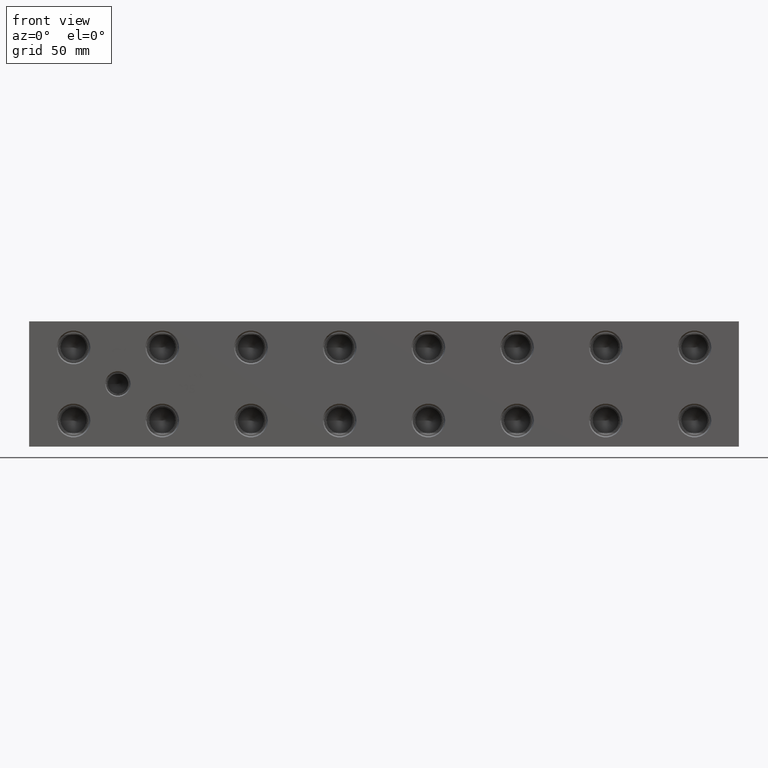
[diagram: clean part render]
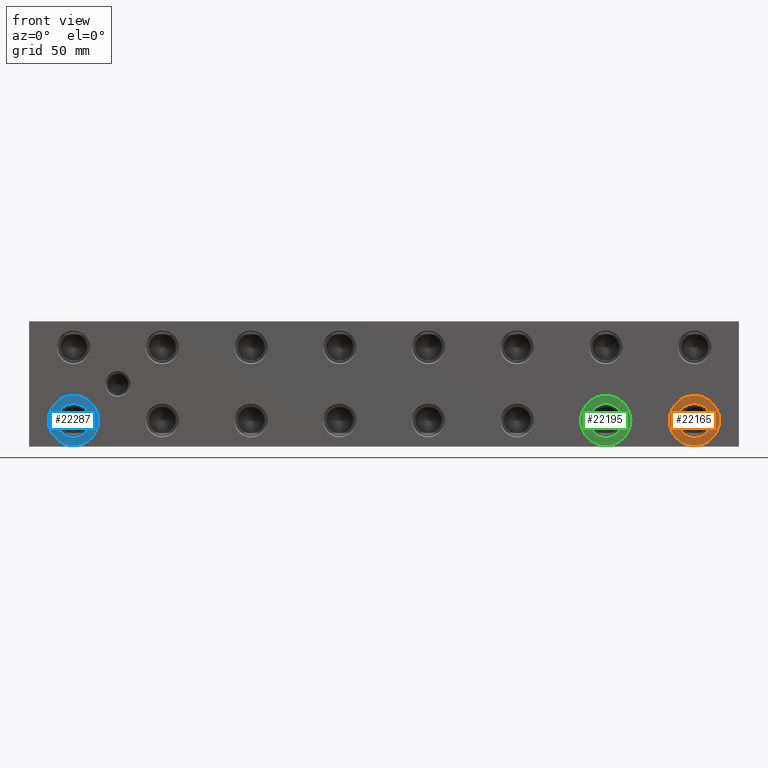
[diagram: same view with three faces highlighted in distinct colors, each labeled with its STEP entity id]
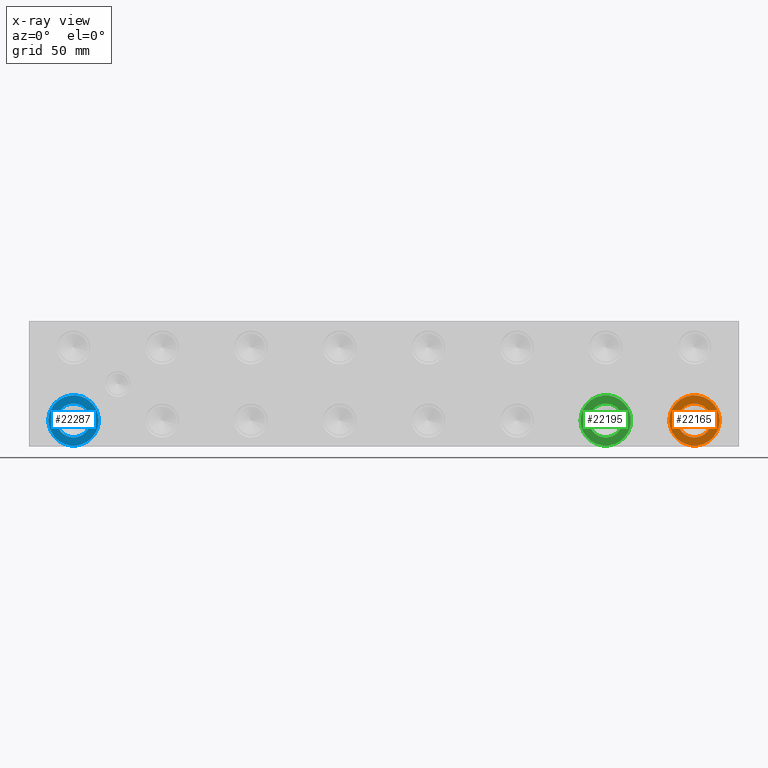
[diagram: x-ray of the same camera — body ghosted, the three highlighted faces saturated]
A machine part, front view with three faces highlighted in distinct colors.
The next image is the same camera in x-ray (body ghosted, the three faces saturated) — at least one of them is partly hidden behind the body in this view.
Their STEP definitions:

[orange] entity #22165 — the highlighted planar face has unit normal (0, 1, 0).
#518=CIRCLE('',#23236,15.3162);
#519=CIRCLE('',#23237,15.3162);
#520=CIRCLE('',#23239,10.2997);
#521=CIRCLE('',#23240,10.2997);
#1316=FACE_BOUND('',#4080,.T.);
#1935=PLANE('',#23238);
#2784=FACE_OUTER_BOUND('',#4079,.T.);
#4079=EDGE_LOOP('',(#18333,#18334));
#4080=EDGE_LOOP('',(#18335,#18336));
#10222=VERTEX_POINT('',#37296);
#10223=VERTEX_POINT('',#37298);
#10224=VERTEX_POINT('',#37302);
#10225=VERTEX_POINT('',#37303);
#13125=EDGE_CURVE('',#10222,#10223,#518,.T.);
#13126=EDGE_CURVE('',#10223,#10222,#519,.T.);
#13127=EDGE_CURVE('',#10224,#10225,#520,.T.);
#13128=EDGE_CURVE('',#10225,#10224,#521,.T.);
#18333=ORIENTED_EDGE('',*,*,#13126,.F.);
#18334=ORIENTED_EDGE('',*,*,#13125,.F.);
#18335=ORIENTED_EDGE('',*,*,#13127,.T.);
#18336=ORIENTED_EDGE('',*,*,#13128,.T.);
#22165=ADVANCED_FACE('',(#2784,#1316),#1935,.F.);
#23236=AXIS2_PLACEMENT_3D('',#37299,#27114,#27115);
#23237=AXIS2_PLACEMENT_3D('',#37300,#27116,#27117);
#23238=AXIS2_PLACEMENT_3D('',#37301,#27118,#27119);
#23239=AXIS2_PLACEMENT_3D('',#37304,#27120,#27121);
#23240=AXIS2_PLACEMENT_3D('',#37305,#27122,#27123);
#27114=DIRECTION('center_axis',(0.,1.,0.));
#27115=DIRECTION('ref_axis',(1.,0.,0.));
#27116=DIRECTION('center_axis',(0.,1.,0.));
#27117=DIRECTION('ref_axis',(1.,0.,0.));
#27118=DIRECTION('center_axis',(0.,1.,0.));
#27119=DIRECTION('ref_axis',(0.,0.,1.));
#27120=DIRECTION('center_axis',(0.,1.,0.));
#27121=DIRECTION('ref_axis',(1.,0.,0.));
#27122=DIRECTION('center_axis',(0.,1.,0.));
#27123=DIRECTION('ref_axis',(1.,0.,0.));
#37296=CARTESIAN_POINT('',(389.4836,0.7874,15.875));
#37298=CARTESIAN_POINT('',(420.116,0.7874,15.875));
#37299=CARTESIAN_POINT('Origin',(404.7998,0.7874,15.875));
#37300=CARTESIAN_POINT('Origin',(404.7998,0.7874,15.875));
#37301=CARTESIAN_POINT('Origin',(415.0995,0.7874,15.875));
#37302=CARTESIAN_POINT('',(415.0995,0.7874,15.875));
#37303=CARTESIAN_POINT('',(394.5001,0.787400000000009,15.875));
#37304=CARTESIAN_POINT('Origin',(404.7998,0.7874,15.875));
#37305=CARTESIAN_POINT('Origin',(404.7998,0.7874,15.875));

[blue] entity #22287 — the highlighted planar face has unit normal (0, 1, 0).
#705=CIRCLE('',#23545,15.3162);
#706=CIRCLE('',#23546,15.3162);
#707=CIRCLE('',#23548,10.2997);
#708=CIRCLE('',#23549,10.2997);
#1338=FACE_BOUND('',#4224,.T.);
#1957=PLANE('',#23547);
#2906=FACE_OUTER_BOUND('',#4223,.T.);
#4223=EDGE_LOOP('',(#18927,#18928));
#4224=EDGE_LOOP('',(#18929,#18930));
#10421=VERTEX_POINT('',#37904);
#10422=VERTEX_POINT('',#37906);
#10423=VERTEX_POINT('',#37910);
#10424=VERTEX_POINT('',#37911);
#13412=EDGE_CURVE('',#10421,#10422,#705,.T.);
#13413=EDGE_CURVE('',#10422,#10421,#706,.T.);
#13414=EDGE_CURVE('',#10423,#10424,#707,.T.);
#13415=EDGE_CURVE('',#10424,#10423,#708,.T.);
#18927=ORIENTED_EDGE('',*,*,#13413,.F.);
#18928=ORIENTED_EDGE('',*,*,#13412,.F.);
#18929=ORIENTED_EDGE('',*,*,#13414,.T.);
#18930=ORIENTED_EDGE('',*,*,#13415,.T.);
#22287=ADVANCED_FACE('',(#2906,#1338),#1957,.F.);
#23545=AXIS2_PLACEMENT_3D('',#37907,#27832,#27833);
#23546=AXIS2_PLACEMENT_3D('',#37908,#27834,#27835);
#23547=AXIS2_PLACEMENT_3D('',#37909,#27836,#27837);
#23548=AXIS2_PLACEMENT_3D('',#37912,#27838,#27839);
#23549=AXIS2_PLACEMENT_3D('',#37913,#27840,#27841);
#27832=DIRECTION('center_axis',(0.,1.,0.));
#27833=DIRECTION('ref_axis',(1.,0.,0.));
#27834=DIRECTION('center_axis',(0.,1.,0.));
#27835=DIRECTION('ref_axis',(1.,0.,0.));
#27836=DIRECTION('center_axis',(0.,1.,0.));
#27837=DIRECTION('ref_axis',(0.,0.,1.));
#27838=DIRECTION('center_axis',(0.,1.,0.));
#27839=DIRECTION('ref_axis',(1.,0.,0.));
#27840=DIRECTION('center_axis',(0.,1.,0.));
#27841=DIRECTION('ref_axis',(1.,0.,0.));
#37904=CARTESIAN_POINT('',(11.6586,0.7874,15.875));
#37906=CARTESIAN_POINT('',(42.291,0.7874,15.875));
#37907=CARTESIAN_POINT('Origin',(26.9748,0.7874,15.875));
#37908=CARTESIAN_POINT('Origin',(26.9748,0.7874,15.875));
#37909=CARTESIAN_POINT('Origin',(37.2745,0.7874,15.875));
#37910=CARTESIAN_POINT('',(37.2745,0.7874,15.875));
#37911=CARTESIAN_POINT('',(16.6751,0.7874,15.875));
#37912=CARTESIAN_POINT('Origin',(26.9748,0.7874,15.875));
#37913=CARTESIAN_POINT('Origin',(26.9748,0.7874,15.875));

[green] entity #22195 — the highlighted planar face has unit normal (0, 1, 0).
#572=CIRCLE('',#23320,15.3162);
#573=CIRCLE('',#23321,15.3162);
#574=CIRCLE('',#23323,10.2997);
#575=CIRCLE('',#23324,10.2997);
#1322=FACE_BOUND('',#4116,.T.);
#1941=PLANE('',#23322);
#2814=FACE_OUTER_BOUND('',#4115,.T.);
#4115=EDGE_LOOP('',(#18495,#18496));
#4116=EDGE_LOOP('',(#18497,#18498));
#10276=VERTEX_POINT('',#37458);
#10277=VERTEX_POINT('',#37460);
#10278=VERTEX_POINT('',#37464);
#10279=VERTEX_POINT('',#37465);
#13203=EDGE_CURVE('',#10276,#10277,#572,.T.);
#13204=EDGE_CURVE('',#10277,#10276,#573,.T.);
#13205=EDGE_CURVE('',#10278,#10279,#574,.T.);
#13206=EDGE_CURVE('',#10279,#10278,#575,.T.);
#18495=ORIENTED_EDGE('',*,*,#13204,.F.);
#18496=ORIENTED_EDGE('',*,*,#13203,.F.);
#18497=ORIENTED_EDGE('',*,*,#13205,.T.);
#18498=ORIENTED_EDGE('',*,*,#13206,.T.);
#22195=ADVANCED_FACE('',(#2814,#1322),#1941,.F.);
#23320=AXIS2_PLACEMENT_3D('',#37461,#27306,#27307);
#23321=AXIS2_PLACEMENT_3D('',#37462,#27308,#27309);
#23322=AXIS2_PLACEMENT_3D('',#37463,#27310,#27311);
#23323=AXIS2_PLACEMENT_3D('',#37466,#27312,#27313);
#23324=AXIS2_PLACEMENT_3D('',#37467,#27314,#27315);
#27306=DIRECTION('center_axis',(0.,1.,0.));
#27307=DIRECTION('ref_axis',(1.,0.,0.));
#27308=DIRECTION('center_axis',(0.,1.,0.));
#27309=DIRECTION('ref_axis',(1.,0.,0.));
#27310=DIRECTION('center_axis',(0.,1.,0.));
#27311=DIRECTION('ref_axis',(0.,0.,1.));
#27312=DIRECTION('center_axis',(0.,1.,0.));
#27313=DIRECTION('ref_axis',(1.,0.,0.));
#27314=DIRECTION('center_axis',(0.,1.,0.));
#27315=DIRECTION('ref_axis',(1.,0.,0.));
#37458=CARTESIAN_POINT('',(335.5086,0.7874,15.875));
#37460=CARTESIAN_POINT('',(366.141,0.7874,15.875));
#37461=CARTESIAN_POINT('Origin',(350.8248,0.7874,15.875));
#37462=CARTESIAN_POINT('Origin',(350.8248,0.7874,15.875));
#37463=CARTESIAN_POINT('Origin',(361.1245,0.7874,15.875));
#37464=CARTESIAN_POINT('',(361.1245,0.7874,15.875));
#37465=CARTESIAN_POINT('',(340.5251,0.787400000000009,15.875));
#37466=CARTESIAN_POINT('Origin',(350.8248,0.7874,15.875));
#37467=CARTESIAN_POINT('Origin',(350.8248,0.7874,15.875));